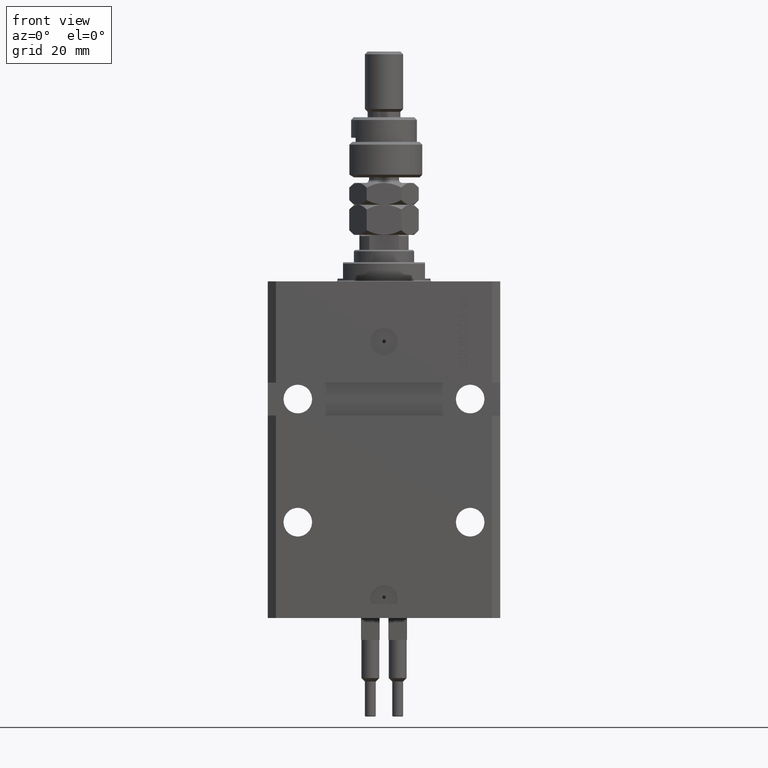
[diagram: clean part render]
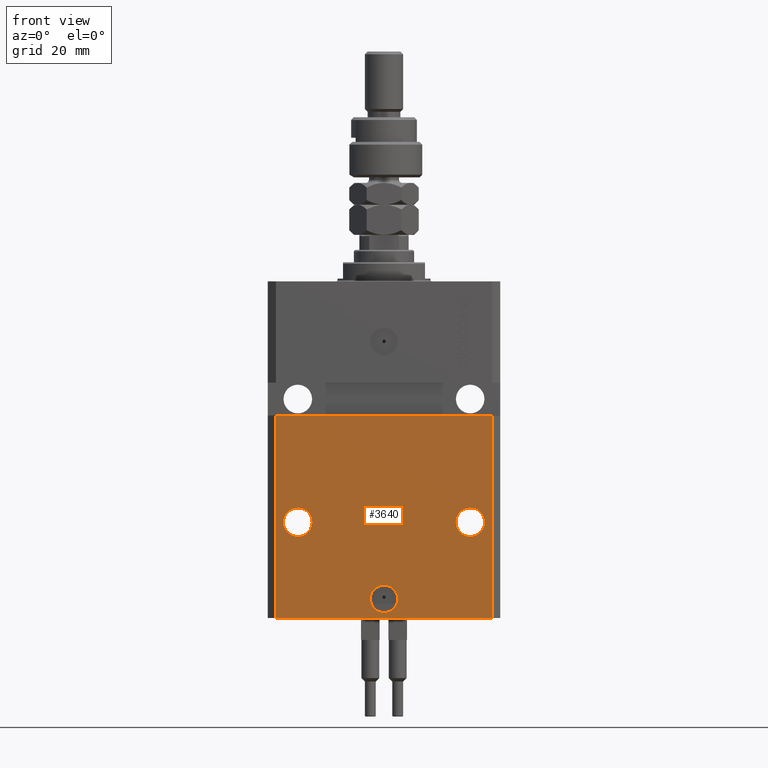
[diagram: same view with one face highlighted and labeled with its STEP entity id]
A machine part, front view. The second image highlights one B-rep face of the part: STEP entity #3640.
In plain terms, the highlighted planar face has unit normal (0, -1, 0).
Its self-contained STEP definition (entity closure, byte-faithful):
#794 = VERTEX_POINT ( 'NONE', #28507 ) ;
#2248 = CARTESIAN_POINT ( 'NONE',  ( 5.000000000000006217, -31.50000000000000000, -115.9999999999999858 ) ) ;
#2921 = CARTESIAN_POINT ( 'NONE',  ( 31.50000000000001421, -31.49999999999999289, -88.00000000000000000 ) ) ;
#3640 = ADVANCED_FACE ( 'NONE', ( #19695, #8168, #51636, #23608 ), #12091, .T. ) ;
#4225 = CARTESIAN_POINT ( 'NONE',  ( 0.000000000000000000, -31.50000000000000000, -115.9999999999999858 ) ) ;
#4443 = ORIENTED_EDGE ( 'NONE', *, *, #18637, .F. ) ;
#5293 = EDGE_LOOP ( 'NONE', ( #26638, #8460 ) ) ;
#5404 = ORIENTED_EDGE ( 'NONE', *, *, #35226, .F. ) ;
#6474 = EDGE_CURVE ( 'NONE', #48156, #24624, #11024, .T. ) ;
#7868 = CARTESIAN_POINT ( 'NONE',  ( 26.25000000000001776, -31.49999999999999289, -88.00000000000000000 ) ) ;
#8168 = FACE_BOUND ( 'NONE', #11959, .T. ) ;
#8217 = ORIENTED_EDGE ( 'NONE', *, *, #44216, .T. ) ;
#8460 = ORIENTED_EDGE ( 'NONE', *, *, #16622, .F. ) ;
#8468 = AXIS2_PLACEMENT_3D ( 'NONE', #47700, #39855, #28077 ) ;
#10227 = VECTOR ( 'NONE', #43529, 1000.000000000000000 ) ;
#10525 = ORIENTED_EDGE ( 'NONE', *, *, #43147, .F. ) ;
#11014 = EDGE_LOOP ( 'NONE', ( #18402, #32753 ) ) ;
#11024 = CIRCLE ( 'NONE', #36143, 5.249999999999997335 ) ;
#11418 = VECTOR ( 'NONE', #32902, 1000.000000000000000 ) ;
#11671 = VERTEX_POINT ( 'NONE', #40483 ) ;
#11796 = DIRECTION ( 'NONE',  ( 1.176083712526788232E-16, -1.000000000000000000, 0.000000000000000000 ) ) ;
#11959 = EDGE_LOOP ( 'NONE', ( #10525, #4443 ) ) ;
#12091 = PLANE ( 'NONE',  #8468 ) ;
#12470 = VERTEX_POINT ( 'NONE', #28563 ) ;
#13303 = EDGE_CURVE ( 'NONE', #42577, #50602, #24580, .T. ) ;
#13702 = AXIS2_PLACEMENT_3D ( 'NONE', #4225, #11796, #40624 ) ;
#13930 = DIRECTION ( 'NONE',  ( 1.000000000000000000, 0.000000000000000000, 0.000000000000000000 ) ) ;
#14123 = ORIENTED_EDGE ( 'NONE', *, *, #47620, .F. ) ;
#14855 = CIRCLE ( 'NONE', #15707, 5.000000000000006217 ) ;
#15707 = AXIS2_PLACEMENT_3D ( 'NONE', #41459, #17104, #13930 ) ;
#15913 = VERTEX_POINT ( 'NONE', #23362 ) ;
#16622 = EDGE_CURVE ( 'NONE', #24624, #48156, #22217, .T. ) ;
#17104 = DIRECTION ( 'NONE',  ( 1.176083712526788232E-16, -1.000000000000000000, 0.000000000000000000 ) ) ;
#17181 = ORIENTED_EDGE ( 'NONE', *, *, #38992, .T. ) ;
#17625 = VERTEX_POINT ( 'NONE', #18937 ) ;
#17920 = CARTESIAN_POINT ( 'NONE',  ( -31.50000000000001421, -31.50000000000000711, -88.00000000000000000 ) ) ;
#18105 = AXIS2_PLACEMENT_3D ( 'NONE', #2921, #34325, #18874 ) ;
#18402 = ORIENTED_EDGE ( 'NONE', *, *, #49897, .F. ) ;
#18637 = EDGE_CURVE ( 'NONE', #25440, #15913, #25663, .T. ) ;
#18874 = DIRECTION ( 'NONE',  ( 1.000000000000000000, 0.000000000000000000, 0.000000000000000000 ) ) ;
#18937 = CARTESIAN_POINT ( 'NONE',  ( 39.50000000000000711, -31.50000000000000000, -123.0000000000000000 ) ) ;
#19695 = FACE_BOUND ( 'NONE', #11014, .T. ) ;
#20085 = CARTESIAN_POINT ( 'NONE',  ( -31.50000000000001421, -31.50000000000000711, -88.00000000000000000 ) ) ;
#20342 = CARTESIAN_POINT ( 'NONE',  ( -39.50000000000000711, -31.50000000000000000, -123.0000000000000000 ) ) ;
#20352 = DIRECTION ( 'NONE',  ( 1.176083712526788232E-16, -1.000000000000000000, 0.000000000000000000 ) ) ;
#20883 = CARTESIAN_POINT ( 'NONE',  ( -5.000000000000006217, -31.50000000000000000, -115.9999999999999858 ) ) ;
#21417 = AXIS2_PLACEMENT_3D ( 'NONE', #17920, #49108, #26029 ) ;
#22217 = CIRCLE ( 'NONE', #21417, 5.249999999999997335 ) ;
#22885 = CARTESIAN_POINT ( 'NONE',  ( 39.50000000000000711, -31.50000000000000000, -123.0000000000000000 ) ) ;
#23362 = CARTESIAN_POINT ( 'NONE',  ( 36.75000000000001421, -31.49999999999999289, -88.00000000000000000 ) ) ;
#23608 = FACE_OUTER_BOUND ( 'NONE', #30129, .T. ) ;
#24580 = CIRCLE ( 'NONE', #13702, 5.000000000000006217 ) ;
#24624 = VERTEX_POINT ( 'NONE', #50183 ) ;
#25171 = DIRECTION ( 'NONE',  ( 1.000000000000000000, 1.632680918566406300E-16, 1.632680918566406300E-16 ) ) ;
#25440 = VERTEX_POINT ( 'NONE', #7868 ) ;
#25663 = CIRCLE ( 'NONE', #18105, 5.249999999999997335 ) ;
#26029 = DIRECTION ( 'NONE',  ( -1.000000000000000000, 0.000000000000000000, 0.000000000000000000 ) ) ;
#26638 = ORIENTED_EDGE ( 'NONE', *, *, #6474, .F. ) ;
#27082 = LINE ( 'NONE', #22885, #43842 ) ;
#27555 = LINE ( 'NONE', #35393, #10227 ) ;
#28077 = DIRECTION ( 'NONE',  ( 0.000000000000000000, -0.000000000000000000, -1.000000000000000000 ) ) ;
#28507 = CARTESIAN_POINT ( 'NONE',  ( -39.50000000000000711, -31.50000000000000000, -123.0000000000000000 ) ) ;
#28563 = CARTESIAN_POINT ( 'NONE',  ( -39.50000000000000000, -31.50000000000000711, -48.99999999999999289 ) ) ;
#30129 = EDGE_LOOP ( 'NONE', ( #14123, #5404, #8217, #17181 ) ) ;
#31015 = CARTESIAN_POINT ( 'NONE',  ( 31.50000000000001421, -31.49999999999999289, -88.00000000000000000 ) ) ;
#31706 = CARTESIAN_POINT ( 'NONE',  ( -42.50000000000000000, -31.50000000000000711, -48.99999999999999289 ) ) ;
#32112 = CARTESIAN_POINT ( 'NONE',  ( -26.25000000000001776, -31.50000000000000711, -88.00000000000000000 ) ) ;
#32753 = ORIENTED_EDGE ( 'NONE', *, *, #13303, .F. ) ;
#32902 = DIRECTION ( 'NONE',  ( 1.000000000000000000, 0.000000000000000000, 0.000000000000000000 ) ) ;
#34325 = DIRECTION ( 'NONE',  ( 1.176083712526788232E-16, -1.000000000000000000, 0.000000000000000000 ) ) ;
#35226 = EDGE_CURVE ( 'NONE', #794, #12470, #27555, .T. ) ;
#35393 = CARTESIAN_POINT ( 'NONE',  ( -39.50000000000000711, -31.50000000000000000, -123.0000000000000000 ) ) ;
#35664 = VECTOR ( 'NONE', #25171, 1000.000000000000000 ) ;
#35890 = LINE ( 'NONE', #31706, #35664 ) ;
#36143 = AXIS2_PLACEMENT_3D ( 'NONE', #20085, #20352, #39996 ) ;
#36574 = LINE ( 'NONE', #20342, #11418 ) ;
#38992 = EDGE_CURVE ( 'NONE', #17625, #11671, #27082, .T. ) ;
#39855 = DIRECTION ( 'NONE',  ( 0.000000000000000000, -1.000000000000000000, 0.000000000000000000 ) ) ;
#39996 = DIRECTION ( 'NONE',  ( -1.000000000000000000, 0.000000000000000000, 0.000000000000000000 ) ) ;
#40483 = CARTESIAN_POINT ( 'NONE',  ( 39.50000000000001421, -31.49999999999999289, -48.99999999999997868 ) ) ;
#40624 = DIRECTION ( 'NONE',  ( 1.000000000000000000, 0.000000000000000000, 0.000000000000000000 ) ) ;
#41459 = CARTESIAN_POINT ( 'NONE',  ( 0.000000000000000000, -31.50000000000000000, -115.9999999999999858 ) ) ;
#42301 = DIRECTION ( 'NONE',  ( 1.176083712526788232E-16, -1.000000000000000000, 0.000000000000000000 ) ) ;
#42577 = VERTEX_POINT ( 'NONE', #20883 ) ;
#43147 = EDGE_CURVE ( 'NONE', #15913, #25440, #47348, .T. ) ;
#43529 = DIRECTION ( 'NONE',  ( 0.000000000000000000, 0.000000000000000000, 1.000000000000000000 ) ) ;
#43842 = VECTOR ( 'NONE', #46719, 1000.000000000000000 ) ;
#44216 = EDGE_CURVE ( 'NONE', #794, #17625, #36574, .T. ) ;
#46536 = AXIS2_PLACEMENT_3D ( 'NONE', #31015, #42301, #46987 ) ;
#46719 = DIRECTION ( 'NONE',  ( 0.000000000000000000, 0.000000000000000000, 1.000000000000000000 ) ) ;
#46987 = DIRECTION ( 'NONE',  ( 1.000000000000000000, 0.000000000000000000, 0.000000000000000000 ) ) ;
#47348 = CIRCLE ( 'NONE', #46536, 5.249999999999997335 ) ;
#47620 = EDGE_CURVE ( 'NONE', #12470, #11671, #35890, .T. ) ;
#47700 = CARTESIAN_POINT ( 'NONE',  ( -39.50000000000000711, -31.50000000000000000, -123.0000000000000000 ) ) ;
#48156 = VERTEX_POINT ( 'NONE', #32112 ) ;
#49108 = DIRECTION ( 'NONE',  ( 1.176083712526788232E-16, -1.000000000000000000, 0.000000000000000000 ) ) ;
#49897 = EDGE_CURVE ( 'NONE', #50602, #42577, #14855, .T. ) ;
#50183 = CARTESIAN_POINT ( 'NONE',  ( -36.75000000000001421, -31.50000000000000711, -88.00000000000000000 ) ) ;
#50602 = VERTEX_POINT ( 'NONE', #2248 ) ;
#51636 = FACE_BOUND ( 'NONE', #5293, .T. ) ;